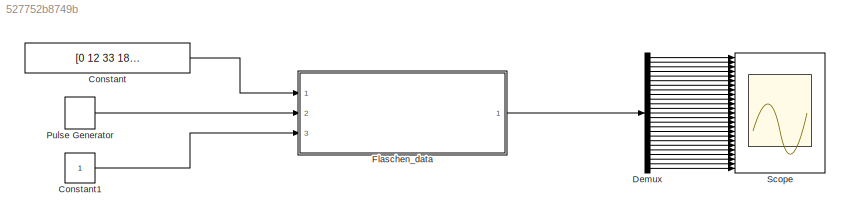
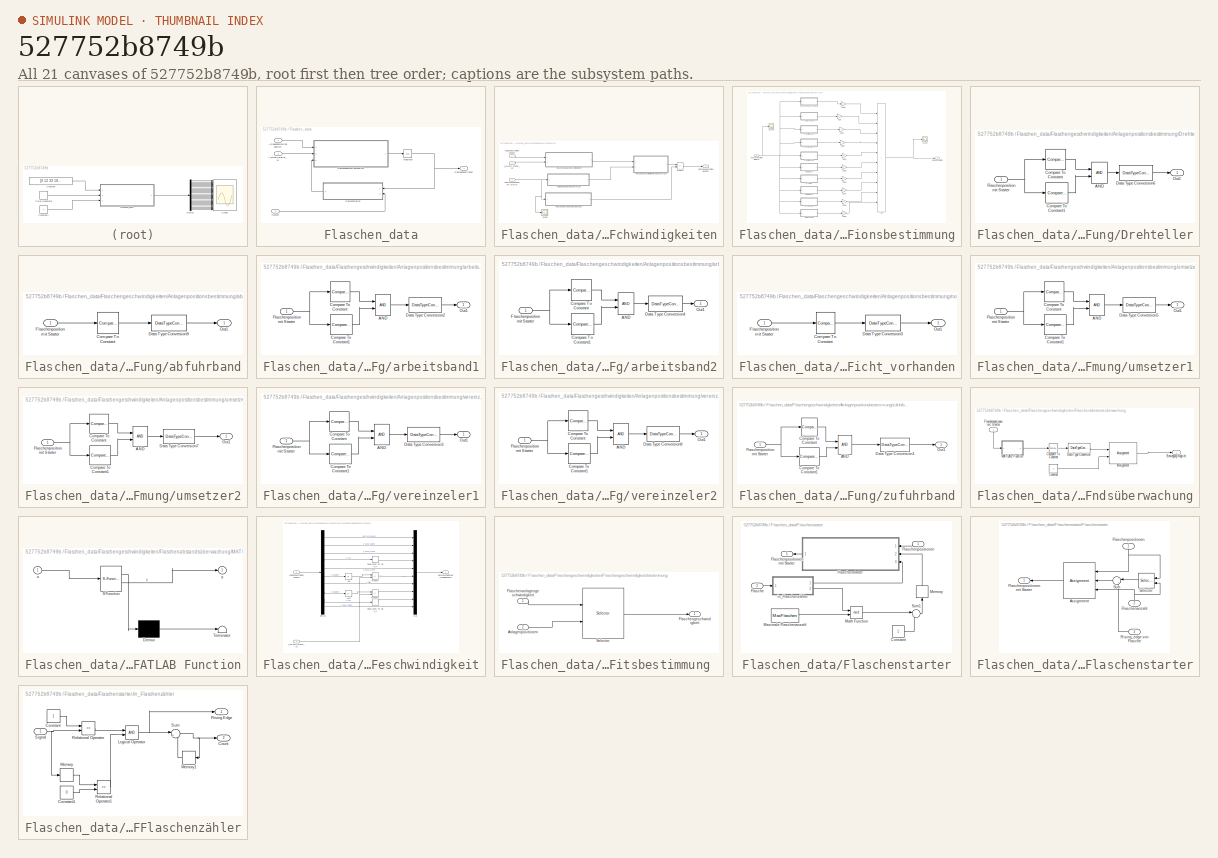
[diagram: thumbnail index - all 21 canvases of the model, root first then tree order]
MODEL mdl_527752b8749b
KIND model
CONFIG AbsTol = auto
CONFIG EnableMultiTasking = on
CONFIG FixedStep = 0.01
CONFIG MaxStep = auto
CONFIG MinStep = auto
CONFIG RelTol = 1e-3
CONFIG SampleTimeConstraint = Unconstrained
CONFIG SolverName = ode3
CONFIG StartTime = 0.0
CONFIG StopTime = 50
BLOCK [Constant] Constant
  Value = [0 12 33 18 28 -80 53 80 24 30]
BLOCK [Constant] Constant1
BLOCK [Demux] Demux
  Outputs = 25
  Ports = [1, 25]
BLOCK [SubSystem] Flaschen_data
  Ports = [3, 1]
  RequestExecContextInheritance = off
BLOCK [Inport] Flaschen_data/Anlagengeschwindigkeiten
BLOCK [Inport] Flaschen_data/Flasche
  Port = 2
BLOCK [SubSystem] Flaschen_data/Flaschengeschwindigkeiten
  Ports = [3, 1]
  RequestExecContextInheritance = off
BLOCK [Inport] Flaschen_data/Flaschengeschwindigkeiten/Anlagengeschwindigkeiten
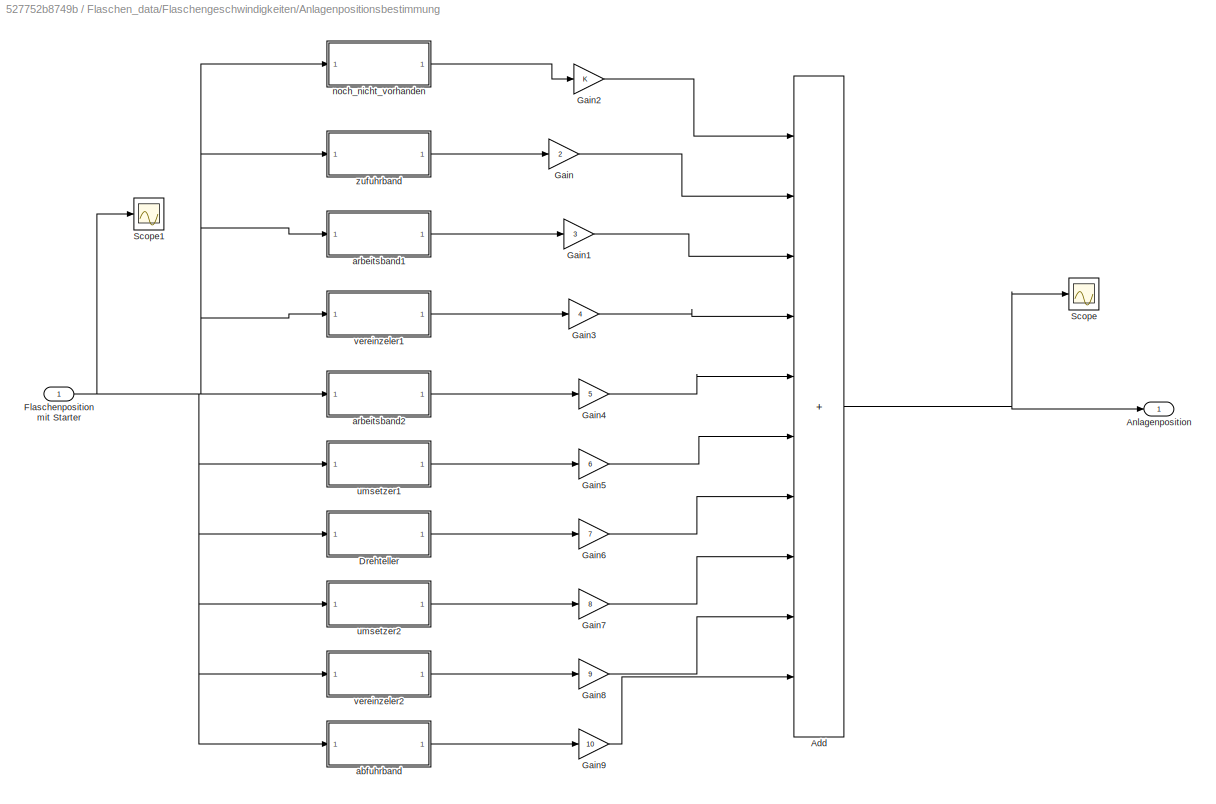
BLOCK [SubSystem] Flaschen_data/Flaschengeschwindigkeiten/Anlagenpositionsbestimmung
  Ports = [1, 1]
  RequestExecContextInheritance = off
BLOCK [Sum] Flaschen_data/Flaschengeschwindigkeiten/Anlagenpositionsbestimmung/Add
  IconShape = rectangular
  Inputs = ++++++++++
  Ports = [10, 1]
BLOCK [Outport] Flaschen_data/Flaschengeschwindigkeiten/Anlagenpositionsbestimmung/Anlagenposition
BLOCK [SubSystem] Flaschen_data/Flaschengeschwindigkeiten/Anlagenpositionsbestimmung/Drehteller
  Ports = [1, 1]
  RequestExecContextInheritance = off
BLOCK [Logic] Flaschen_data/Flaschengeschwindigkeiten/Anlagenpositionsbestimmung/Drehteller/AND
  AllPortsSameDT = off
  IconShape = distinctive
  OutDataTypeStr = boolean
  Ports = [2, 1]
BLOCK [Reference] Flaschen_data/Flaschengeschwindigkeiten/Anlagenpositionsbestimmung/Drehteller/Compare To Constant  REF=simulink/Logic and Bit
Operations/Compare
To Constant
  Ports = [1, 1]
  SourceBlock = simulink/Logic and Bit\nOperations/Compare\nTo Constant
  SourceProductBaseCode = SL
  SourceType = Compare To Constant
BLOCK [Reference] Flaschen_data/Flaschengeschwindigkeiten/Anlagenpositionsbestimmung/Drehteller/Compare To Constant1  REF=simulink/Logic and Bit
Operations/Compare
To Constant
  Ports = [1, 1]
  SourceBlock = simulink/Logic and Bit\nOperations/Compare\nTo Constant
  SourceProductBaseCode = SL
  SourceType = Compare To Constant
BLOCK [DataTypeConversion] Flaschen_data/Flaschengeschwindigkeiten/Anlagenpositionsbestimmung/Drehteller/Data Type Conversion6
  RndMeth = Floor
  SaturateOnIntegerOverflow = off
BLOCK [Inport] Flaschen_data/Flaschengeschwindigkeiten/Anlagenpositionsbestimmung/Drehteller/Flaschenposition mit Starter
BLOCK [Outport] Flaschen_data/Flaschengeschwindigkeiten/Anlagenpositionsbestimmung/Drehteller/Out1
BLOCK [Inport] Flaschen_data/Flaschengeschwindigkeiten/Anlagenpositionsbestimmung/Flaschenposition mit Starter
BLOCK [Gain] Flaschen_data/Flaschengeschwindigkeiten/Anlagenpositionsbestimmung/Gain
  Gain = 2
BLOCK [Gain] Flaschen_data/Flaschengeschwindigkeiten/Anlagenpositionsbestimmung/Gain1
  Gain = 3
BLOCK [Gain] Flaschen_data/Flaschengeschwindigkeiten/Anlagenpositionsbestimmung/Gain2
BLOCK [Gain] Flaschen_data/Flaschengeschwindigkeiten/Anlagenpositionsbestimmung/Gain3
  Gain = 4
BLOCK [Gain] Flaschen_data/Flaschengeschwindigkeiten/Anlagenpositionsbestimmung/Gain4
  Gain = 5
BLOCK [Gain] Flaschen_data/Flaschengeschwindigkeiten/Anlagenpositionsbestimmung/Gain5
  Gain = 6
BLOCK [Gain] Flaschen_data/Flaschengeschwindigkeiten/Anlagenpositionsbestimmung/Gain6
  Gain = 7
BLOCK [Gain] Flaschen_data/Flaschengeschwindigkeiten/Anlagenpositionsbestimmung/Gain7
  Gain = 8
BLOCK [Gain] Flaschen_data/Flaschengeschwindigkeiten/Anlagenpositionsbestimmung/Gain8
  Gain = 9
BLOCK [Gain] Flaschen_data/Flaschengeschwindigkeiten/Anlagenpositionsbestimmung/Gain9
  Gain = 10
BLOCK [Scope] Flaschen_data/Flaschengeschwindigkeiten/Anlagenpositionsbestimmung/Scope
  Floating = off
  NumInputPorts = 1
  Ports = [1]
  ScopeSpecificationString = Simulink.scopes.TimeScopeBlockCfg('CurrentConfiguration', extmgr.ConfigurationSet(extmgr.Configuration('Core','General UI',true),extmgr.Configuration('Core','Source UI',true),extmgr.Configuration('Sources','WiredSimulink',true,'DataLoggingVariableName','ScopeData1'),extmgr.Configuration('Visuals','Time Domain',true,'SerializedDisplays',{struct('MinYLimReal','-0.125','MaxYLimReal','11.125','YLabelR...<+1621ch>
BLOCK [Scope] Flaschen_data/Flaschengeschwindigkeiten/Anlagenpositionsbestimmung/Scope1
  Floating = off
  NumInputPorts = 1
  Ports = [1]
  ScopeSpecificationString = Simulink.scopes.TimeScopeBlockCfg('CurrentConfiguration', extmgr.ConfigurationSet(extmgr.Configuration('Core','General UI',true),extmgr.Configuration('Core','Source UI',true),extmgr.Configuration('Sources','WiredSimulink',true,'DataLoggingVariableName','ScopeData2'),extmgr.Configuration('Visuals','Time Domain',true,'SerializedDisplays',{struct('MinYLimReal','-181.88944','MaxYLimReal','1637.005','Y...<+2208ch>
BLOCK [SubSystem] Flaschen_data/Flaschengeschwindigkeiten/Anlagenpositionsbestimmung/abfuhrband
  Ports = [1, 1]
  RequestExecContextInheritance = off
BLOCK [Reference] Flaschen_data/Flaschengeschwindigkeiten/Anlagenpositionsbestimmung/abfuhrband/Compare To Constant  REF=simulink/Logic and Bit
Operations/Compare
To Constant
  Ports = [1, 1]
  SourceBlock = simulink/Logic and Bit\nOperations/Compare\nTo Constant
  SourceProductBaseCode = SL
  SourceType = Compare To Constant
BLOCK [DataTypeConversion] Flaschen_data/Flaschengeschwindigkeiten/Anlagenpositionsbestimmung/abfuhrband/Data Type Conversion9
  RndMeth = Floor
  SaturateOnIntegerOverflow = off
BLOCK [Inport] Flaschen_data/Flaschengeschwindigkeiten/Anlagenpositionsbestimmung/abfuhrband/Flaschenposition mit Starter
BLOCK [Outport] Flaschen_data/Flaschengeschwindigkeiten/Anlagenpositionsbestimmung/abfuhrband/Out1
BLOCK [SubSystem] Flaschen_data/Flaschengeschwindigkeiten/Anlagenpositionsbestimmung/arbeitsband1
  Ports = [1, 1]
  RequestExecContextInheritance = off
BLOCK [Logic] Flaschen_data/Flaschengeschwindigkeiten/Anlagenpositionsbestimmung/arbeitsband1/AND
  AllPortsSameDT = off
  IconShape = distinctive
  OutDataTypeStr = boolean
  Ports = [2, 1]
BLOCK [Reference] Flaschen_data/Flaschengeschwindigkeiten/Anlagenpositionsbestimmung/arbeitsband1/Compare To Constant  REF=simulink/Logic and Bit
Operations/Compare
To Constant
  Ports = [1, 1]
  SourceBlock = simulink/Logic and Bit\nOperations/Compare\nTo Constant
  SourceProductBaseCode = SL
  SourceType = Compare To Constant
BLOCK [Reference] Flaschen_data/Flaschengeschwindigkeiten/Anlagenpositionsbestimmung/arbeitsband1/Compare To Constant1  REF=simulink/Logic and Bit
Operations/Compare
To Constant
  Ports = [1, 1]
  SourceBlock = simulink/Logic and Bit\nOperations/Compare\nTo Constant
  SourceProductBaseCode = SL
  SourceType = Compare To Constant
BLOCK [DataTypeConversion] Flaschen_data/Flaschengeschwindigkeiten/Anlagenpositionsbestimmung/arbeitsband1/Data Type Conversion2
  RndMeth = Floor
  SaturateOnIntegerOverflow = off
BLOCK [Inport] Flaschen_data/Flaschengeschwindigkeiten/Anlagenpositionsbestimmung/arbeitsband1/Flaschenposition mit Starter
BLOCK [Outport] Flaschen_data/Flaschengeschwindigkeiten/Anlagenpositionsbestimmung/arbeitsband1/Out1
BLOCK [SubSystem] Flaschen_data/Flaschengeschwindigkeiten/Anlagenpositionsbestimmung/arbeitsband2
  Ports = [1, 1]
  RequestExecContextInheritance = off
BLOCK [Logic] Flaschen_data/Flaschengeschwindigkeiten/Anlagenpositionsbestimmung/arbeitsband2/AND
  AllPortsSameDT = off
  IconShape = distinctive
  OutDataTypeStr = boolean
  Ports = [2, 1]
BLOCK [Reference] Flaschen_data/Flaschengeschwindigkeiten/Anlagenpositionsbestimmung/arbeitsband2/Compare To Constant  REF=simulink/Logic and Bit
Operations/Compare
To Constant
  Ports = [1, 1]
  SourceBlock = simulink/Logic and Bit\nOperations/Compare\nTo Constant
  SourceProductBaseCode = SL
  SourceType = Compare To Constant
BLOCK [Reference] Flaschen_data/Flaschengeschwindigkeiten/Anlagenpositionsbestimmung/arbeitsband2/Compare To Constant1  REF=simulink/Logic and Bit
Operations/Compare
To Constant
  Ports = [1, 1]
  SourceBlock = simulink/Logic and Bit\nOperations/Compare\nTo Constant
  SourceProductBaseCode = SL
  SourceType = Compare To Constant
BLOCK [DataTypeConversion] Flaschen_data/Flaschengeschwindigkeiten/Anlagenpositionsbestimmung/arbeitsband2/Data Type Conversion4
  RndMeth = Floor
  SaturateOnIntegerOverflow = off
BLOCK [Inport] Flaschen_data/Flaschengeschwindigkeiten/Anlagenpositionsbestimmung/arbeitsband2/Flaschenposition mit Starter
BLOCK [Outport] Flaschen_data/Flaschengeschwindigkeiten/Anlagenpositionsbestimmung/arbeitsband2/Out1
BLOCK [SubSystem] Flaschen_data/Flaschengeschwindigkeiten/Anlagenpositionsbestimmung/noch_nicht_vorhanden
  Ports = [1, 1]
  RequestExecContextInheritance = off
BLOCK [Reference] Flaschen_data/Flaschengeschwindigkeiten/Anlagenpositionsbestimmung/noch_nicht_vorhanden/Compare To Constant  REF=simulink/Logic and Bit
Operations/Compare
To Constant
  Ports = [1, 1]
  SourceBlock = simulink/Logic and Bit\nOperations/Compare\nTo Constant
  SourceProductBaseCode = SL
  SourceType = Compare To Constant
BLOCK [DataTypeConversion] Flaschen_data/Flaschengeschwindigkeiten/Anlagenpositionsbestimmung/noch_nicht_vorhanden/Data Type Conversion3
  RndMeth = Floor
  SaturateOnIntegerOverflow = off
BLOCK [Inport] Flaschen_data/Flaschengeschwindigkeiten/Anlagenpositionsbestimmung/noch_nicht_vorhanden/Flaschenposition mit Starter
BLOCK [Outport] Flaschen_data/Flaschengeschwindigkeiten/Anlagenpositionsbestimmung/noch_nicht_vorhanden/Out1
BLOCK [SubSystem] Flaschen_data/Flaschengeschwindigkeiten/Anlagenpositionsbestimmung/umsetzer1
  Ports = [1, 1]
  RequestExecContextInheritance = off
BLOCK [Logic] Flaschen_data/Flaschengeschwindigkeiten/Anlagenpositionsbestimmung/umsetzer1/AND
  AllPortsSameDT = off
  IconShape = distinctive
  OutDataTypeStr = boolean
  Ports = [2, 1]
BLOCK [Reference] Flaschen_data/Flaschengeschwindigkeiten/Anlagenpositionsbestimmung/umsetzer1/Compare To Constant  REF=simulink/Logic and Bit
Operations/Compare
To Constant
  Ports = [1, 1]
  SourceBlock = simulink/Logic and Bit\nOperations/Compare\nTo Constant
  SourceProductBaseCode = SL
  SourceType = Compare To Constant
BLOCK [Reference] Flaschen_data/Flaschengeschwindigkeiten/Anlagenpositionsbestimmung/umsetzer1/Compare To Constant1  REF=simulink/Logic and Bit
Operations/Compare
To Constant
  Ports = [1, 1]
  SourceBlock = simulink/Logic and Bit\nOperations/Compare\nTo Constant
  SourceProductBaseCode = SL
  SourceType = Compare To Constant
BLOCK [DataTypeConversion] Flaschen_data/Flaschengeschwindigkeiten/Anlagenpositionsbestimmung/umsetzer1/Data Type Conversion5
  RndMeth = Floor
  SaturateOnIntegerOverflow = off
BLOCK [Inport] Flaschen_data/Flaschengeschwindigkeiten/Anlagenpositionsbestimmung/umsetzer1/Flaschenposition mit Starter
BLOCK [Outport] Flaschen_data/Flaschengeschwindigkeiten/Anlagenpositionsbestimmung/umsetzer1/Out1
BLOCK [SubSystem] Flaschen_data/Flaschengeschwindigkeiten/Anlagenpositionsbestimmung/umsetzer2
  Ports = [1, 1]
  RequestExecContextInheritance = off
BLOCK [Logic] Flaschen_data/Flaschengeschwindigkeiten/Anlagenpositionsbestimmung/umsetzer2/AND
  AllPortsSameDT = off
  IconShape = distinctive
  OutDataTypeStr = boolean
  Ports = [2, 1]
BLOCK [Reference] Flaschen_data/Flaschengeschwindigkeiten/Anlagenpositionsbestimmung/umsetzer2/Compare To Constant  REF=simulink/Logic and Bit
Operations/Compare
To Constant
  Ports = [1, 1]
  SourceBlock = simulink/Logic and Bit\nOperations/Compare\nTo Constant
  SourceProductBaseCode = SL
  SourceType = Compare To Constant
BLOCK [Reference] Flaschen_data/Flaschengeschwindigkeiten/Anlagenpositionsbestimmung/umsetzer2/Compare To Constant1  REF=simulink/Logic and Bit
Operations/Compare
To Constant
  Ports = [1, 1]
  SourceBlock = simulink/Logic and Bit\nOperations/Compare\nTo Constant
  SourceProductBaseCode = SL
  SourceType = Compare To Constant
BLOCK [DataTypeConversion] Flaschen_data/Flaschengeschwindigkeiten/Anlagenpositionsbestimmung/umsetzer2/Data Type Conversion7
  RndMeth = Floor
  SaturateOnIntegerOverflow = off
BLOCK [Inport] Flaschen_data/Flaschengeschwindigkeiten/Anlagenpositionsbestimmung/umsetzer2/Flaschenposition mit Starter
BLOCK [Outport] Flaschen_data/Flaschengeschwindigkeiten/Anlagenpositionsbestimmung/umsetzer2/Out1
BLOCK [SubSystem] Flaschen_data/Flaschengeschwindigkeiten/Anlagenpositionsbestimmung/vereinzeler1
  Ports = [1, 1]
  RequestExecContextInheritance = off
BLOCK [Logic] Flaschen_data/Flaschengeschwindigkeiten/Anlagenpositionsbestimmung/vereinzeler1/AND
  AllPortsSameDT = off
  IconShape = distinctive
  OutDataTypeStr = boolean
  Ports = [2, 1]
BLOCK [Reference] Flaschen_data/Flaschengeschwindigkeiten/Anlagenpositionsbestimmung/vereinzeler1/Compare To Constant  REF=simulink/Logic and Bit
Operations/Compare
To Constant
  Ports = [1, 1]
  SourceBlock = simulink/Logic and Bit\nOperations/Compare\nTo Constant
  SourceProductBaseCode = SL
  SourceType = Compare To Constant
BLOCK [Reference] Flaschen_data/Flaschengeschwindigkeiten/Anlagenpositionsbestimmung/vereinzeler1/Compare To Constant1  REF=simulink/Logic and Bit
Operations/Compare
To Constant
  Ports = [1, 1]
  SourceBlock = simulink/Logic and Bit\nOperations/Compare\nTo Constant
  SourceProductBaseCode = SL
  SourceType = Compare To Constant
BLOCK [DataTypeConversion] Flaschen_data/Flaschengeschwindigkeiten/Anlagenpositionsbestimmung/vereinzeler1/Data Type Conversion3
  RndMeth = Floor
  SaturateOnIntegerOverflow = off
BLOCK [Inport] Flaschen_data/Flaschengeschwindigkeiten/Anlagenpositionsbestimmung/vereinzeler1/Flaschenposition mit Starter
BLOCK [Outport] Flaschen_data/Flaschengeschwindigkeiten/Anlagenpositionsbestimmung/vereinzeler1/Out1
BLOCK [SubSystem] Flaschen_data/Flaschengeschwindigkeiten/Anlagenpositionsbestimmung/vereinzeler2
  Ports = [1, 1]
  RequestExecContextInheritance = off
BLOCK [Logic] Flaschen_data/Flaschengeschwindigkeiten/Anlagenpositionsbestimmung/vereinzeler2/AND
  AllPortsSameDT = off
  IconShape = distinctive
  OutDataTypeStr = boolean
  Ports = [2, 1]
BLOCK [Reference] Flaschen_data/Flaschengeschwindigkeiten/Anlagenpositionsbestimmung/vereinzeler2/Compare To Constant  REF=simulink/Logic and Bit
Operations/Compare
To Constant
  Ports = [1, 1]
  SourceBlock = simulink/Logic and Bit\nOperations/Compare\nTo Constant
  SourceProductBaseCode = SL
  SourceType = Compare To Constant
BLOCK [Reference] Flaschen_data/Flaschengeschwindigkeiten/Anlagenpositionsbestimmung/vereinzeler2/Compare To Constant1  REF=simulink/Logic and Bit
Operations/Compare
To Constant
  Ports = [1, 1]
  SourceBlock = simulink/Logic and Bit\nOperations/Compare\nTo Constant
  SourceProductBaseCode = SL
  SourceType = Compare To Constant
BLOCK [DataTypeConversion] Flaschen_data/Flaschengeschwindigkeiten/Anlagenpositionsbestimmung/vereinzeler2/Data Type Conversion8
  RndMeth = Floor
  SaturateOnIntegerOverflow = off
BLOCK [Inport] Flaschen_data/Flaschengeschwindigkeiten/Anlagenpositionsbestimmung/vereinzeler2/Flaschenposition mit Starter
BLOCK [Outport] Flaschen_data/Flaschengeschwindigkeiten/Anlagenpositionsbestimmung/vereinzeler2/Out1
BLOCK [SubSystem] Flaschen_data/Flaschengeschwindigkeiten/Anlagenpositionsbestimmung/zufuhrband
  Ports = [1, 1]
  RequestExecContextInheritance = off
BLOCK [Logic] Flaschen_data/Flaschengeschwindigkeiten/Anlagenpositionsbestimmung/zufuhrband/AND
  AllPortsSameDT = off
  IconShape = distinctive
  OutDataTypeStr = boolean
  Ports = [2, 1]
BLOCK [Reference] Flaschen_data/Flaschengeschwindigkeiten/Anlagenpositionsbestimmung/zufuhrband/Compare To Constant  REF=simulink/Logic and Bit
Operations/Compare
To Constant
  Ports = [1, 1]
  SourceBlock = simulink/Logic and Bit\nOperations/Compare\nTo Constant
  SourceProductBaseCode = SL
  SourceType = Compare To Constant
BLOCK [Reference] Flaschen_data/Flaschengeschwindigkeiten/Anlagenpositionsbestimmung/zufuhrband/Compare To Constant1  REF=simulink/Logic and Bit
Operations/Compare
To Constant
  Ports = [1, 1]
  SourceBlock = simulink/Logic and Bit\nOperations/Compare\nTo Constant
  SourceProductBaseCode = SL
  SourceType = Compare To Constant
BLOCK [DataTypeConversion] Flaschen_data/Flaschengeschwindigkeiten/Anlagenpositionsbestimmung/zufuhrband/Data Type Conversion1
  RndMeth = Floor
  SaturateOnIntegerOverflow = off
BLOCK [Inport] Flaschen_data/Flaschengeschwindigkeiten/Anlagenpositionsbestimmung/zufuhrband/Flaschenposition mit Starter
BLOCK [Outport] Flaschen_data/Flaschengeschwindigkeiten/Anlagenpositionsbestimmung/zufuhrband/Out1
BLOCK [SubSystem] Flaschen_data/Flaschengeschwindigkeiten/Flaschenabstandsüberwachung
  Ports = [1, 1]
  RequestExecContextInheritance = off
BLOCK [Assignment] Flaschen_data/Flaschengeschwindigkeiten/Flaschenabstandsüberwachung/Assignment
  DiagnosticForDimensions = Warning
  IndexOptions = Index vector (dialog)
  Indices = 1
  OutputSizes = 1
  Ports = [2, 1]
BLOCK [Outport] Flaschen_data/Flaschengeschwindigkeiten/Flaschenabstandsüberwachung/Bewegung möglich
BLOCK [Reference] Flaschen_data/Flaschengeschwindigkeiten/Flaschenabstandsüberwachung/Compare To Constant  REF=simulink/Logic and Bit
Operations/Compare
To Constant
  Ports = [1, 1]
  SourceBlock = simulink/Logic and Bit\nOperations/Compare\nTo Constant
  SourceProductBaseCode = SL
  SourceType = Compare To Constant
BLOCK [Constant] Flaschen_data/Flaschengeschwindigkeiten/Flaschenabstandsüberwachung/Constant
BLOCK [DataTypeConversion] Flaschen_data/Flaschengeschwindigkeiten/Flaschenabstandsüberwachung/Data Type Conversion
  RndMeth = Floor
  SaturateOnIntegerOverflow = off
BLOCK [Inport] Flaschen_data/Flaschengeschwindigkeiten/Flaschenabstandsüberwachung/Flaschenpostionen mit Starter
  NameLocation = right
BLOCK [SubSystem] Flaschen_data/Flaschengeschwindigkeiten/Flaschenabstandsüberwachung/MATLAB Function
  ErrorFcn = Stateflow.Translate.translate
  PermitHierarchicalResolution = ExplicitOnly
  Ports = [1, 1]
  RequestExecContextInheritance = off
  SFBlockType = MATLAB Function
  TreatAsAtomicUnit = on
BLOCK [Demux] Flaschen_data/Flaschengeschwindigkeiten/Flaschenabstandsüberwachung/MATLAB Function/ Demux 
  Outputs = 1
  Ports = [1, 1]
BLOCK [S-Function] Flaschen_data/Flaschengeschwindigkeiten/Flaschenabstandsüberwachung/MATLAB Function/ SFunction 
  EnableBusSupport = on
  FunctionName = sf_sfun
  PortCounts = [1 2]
  Ports = [1, 2]
  SFcnIsStateOwnerBlock = off
  SFunctionDeploymentMode = off
  Tag = Stateflow S-Function 2
BLOCK [Terminator] Flaschen_data/Flaschengeschwindigkeiten/Flaschenabstandsüberwachung/MATLAB Function/ Terminator 
BLOCK [Inport] Flaschen_data/Flaschengeschwindigkeiten/Flaschenabstandsüberwachung/MATLAB Function/u
BLOCK [Outport] Flaschen_data/Flaschengeschwindigkeiten/Flaschenabstandsüberwachung/MATLAB Function/y
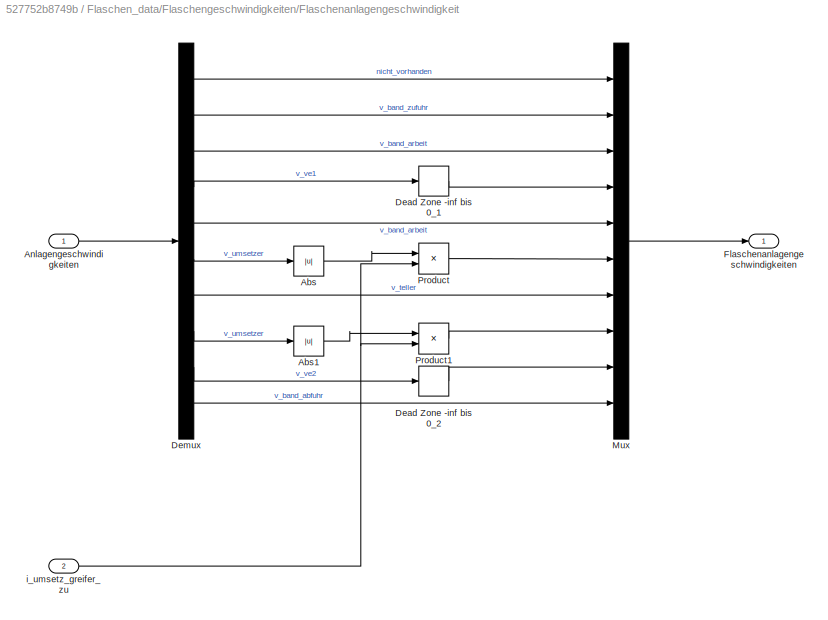
BLOCK [SubSystem] Flaschen_data/Flaschengeschwindigkeiten/Flaschenanlagengeschwindigkeit
  Ports = [2, 1]
  RequestExecContextInheritance = off
BLOCK [Abs] Flaschen_data/Flaschengeschwindigkeiten/Flaschenanlagengeschwindigkeit/Abs
  SaturateOnIntegerOverflow = off
BLOCK [Abs] Flaschen_data/Flaschengeschwindigkeiten/Flaschenanlagengeschwindigkeit/Abs1
  SaturateOnIntegerOverflow = off
BLOCK [Inport] Flaschen_data/Flaschengeschwindigkeiten/Flaschenanlagengeschwindigkeit/Anlagengeschwindigkeiten
BLOCK [DeadZone] Flaschen_data/Flaschengeschwindigkeiten/Flaschenanlagengeschwindigkeit/Dead Zone -inf bis 0_1
  LowerValue = -inf
  UpperValue = 0
BLOCK [DeadZone] Flaschen_data/Flaschengeschwindigkeiten/Flaschenanlagengeschwindigkeit/Dead Zone -inf bis 0_2
  LowerValue = -inf
  UpperValue = 0
BLOCK [Demux] Flaschen_data/Flaschengeschwindigkeiten/Flaschenanlagengeschwindigkeit/Demux
  Outputs = 10
  Ports = [1, 10]
BLOCK [Outport] Flaschen_data/Flaschengeschwindigkeiten/Flaschenanlagengeschwindigkeit/Flaschenanlagengeschwindigkeiten
BLOCK [Mux] Flaschen_data/Flaschengeschwindigkeiten/Flaschenanlagengeschwindigkeit/Mux
  DisplayOption = bar
  Inputs = 10
  Ports = [10, 1]
BLOCK [Product] Flaschen_data/Flaschengeschwindigkeiten/Flaschenanlagengeschwindigkeit/Product
  Ports = [2, 1]
BLOCK [Product] Flaschen_data/Flaschengeschwindigkeiten/Flaschenanlagengeschwindigkeit/Product1
  Ports = [2, 1]
BLOCK [Inport] Flaschen_data/Flaschengeschwindigkeiten/Flaschenanlagengeschwindigkeit/i_umsetz_greifer_zu
  Port = 2
BLOCK [Outport] Flaschen_data/Flaschengeschwindigkeiten/Flaschengeschwindigkeiten
BLOCK [SubSystem] Flaschen_data/Flaschengeschwindigkeiten/Flaschengeschwindigkeitsbestimmung 
  Ports = [2, 1]
  RequestExecContextInheritance = off
  TreatAsAtomicUnit = on
BLOCK [Inport] Flaschen_data/Flaschengeschwindigkeiten/Flaschengeschwindigkeitsbestimmung /Anlagenpositionen
  Port = 2
BLOCK [Inport] Flaschen_data/Flaschengeschwindigkeiten/Flaschengeschwindigkeitsbestimmung /Flaschenanlagengeschwindigkeit
BLOCK [Outport] Flaschen_data/Flaschengeschwindigkeiten/Flaschengeschwindigkeitsbestimmung /Flaschengeschwindigkeit
BLOCK [Selector] Flaschen_data/Flaschengeschwindigkeiten/Flaschengeschwindigkeitsbestimmung /Selector
  IndexOptions = Index vector (port)
  Indices = [1 3]
  InputPortWidth = 10
  OutputSizes = 1
  Ports = [2, 1]
BLOCK [Inport] Flaschen_data/Flaschengeschwindigkeiten/Flaschenpositionen mit Starter
  Port = 3
BLOCK [Product] Flaschen_data/Flaschengeschwindigkeiten/Product
  Ports = [2, 1]
BLOCK [Scope] Flaschen_data/Flaschengeschwindigkeiten/Scope
  Floating = off
  NumInputPorts = 1
  Ports = [1]
  ScopeSpecificationString = Simulink.scopes.TimeScopeBlockCfg('CurrentConfiguration', extmgr.ConfigurationSet(extmgr.Configuration('Core','General UI',true),extmgr.Configuration('Core','Source UI',true),extmgr.Configuration('Sources','WiredSimulink',true,'DataLoggingVariableName','ScopeData3'),extmgr.Configuration('Visuals','Time Domain',true,'SerializedDisplays',{struct('MinYLimReal','-181.88944','MaxYLimReal','1637.005','Y...<+2258ch>
BLOCK [Inport] Flaschen_data/Flaschengeschwindigkeiten/i_umsetz_greifer_zu
  Port = 2
BLOCK [Outport] Flaschen_data/Flaschenpositionen
BLOCK [SubSystem] Flaschen_data/Flaschenstarter
  Ports = [2, 1]
  RequestExecContextInheritance = off
BLOCK [Constant] Flaschen_data/Flaschenstarter/Constant
  OutDataTypeStr = uint16
BLOCK [Inport] Flaschen_data/Flaschenstarter/Flasche
  Port = 2
BLOCK [Inport] Flaschen_data/Flaschenstarter/Flaschenpositionen
BLOCK [Outport] Flaschen_data/Flaschenstarter/Flaschenpositionen mit Starter
BLOCK [SubSystem] Flaschen_data/Flaschenstarter/Flaschenstarter
  Ports = [3, 1]
  RequestExecContextInheritance = off
BLOCK [Assignment] Flaschen_data/Flaschenstarter/Flaschenstarter/Assignment
  IndexOptions = Index vector (port)
  Indices = 1
  OutputSizes = [1]
  Ports = [3, 1]
BLOCK [Inport] Flaschen_data/Flaschenstarter/Flaschenstarter/Flaschenanzahl
  NameLocation = right
  Port = 2
BLOCK [Inport] Flaschen_data/Flaschenstarter/Flaschenstarter/Flaschenpositionen
  NameLocation = right
BLOCK [Outport] Flaschen_data/Flaschenstarter/Flaschenstarter/Flaschenpositionen mit Starter
BLOCK [Inport] Flaschen_data/Flaschenstarter/Flaschenstarter/Rising_edge von Flasche
  Port = 3
BLOCK [Selector] Flaschen_data/Flaschenstarter/Flaschenstarter/Selector
  IndexOptions = Index vector (port)
  Indices = [1 3]
  InputPortWidth = MaxFlaschen
  OutputSizes = 1
  Ports = [2, 1]
BLOCK [Sum] Flaschen_data/Flaschenstarter/Flaschenstarter/Sum
  Inputs = |++
  OutDataTypeStr = double
  Ports = [2, 1]
  RndMeth = Zero
BLOCK [Math] Flaschen_data/Flaschenstarter/Math Function
  Operator = mod
  Ports = [2, 1]
  SignedPower = on
BLOCK [Constant] Flaschen_data/Flaschenstarter/Maximale Flaschenanzahl
  OutDataTypeStr = uint16
  Value = MaxFlaschen
BLOCK [Memory] Flaschen_data/Flaschenstarter/Memory
  InitialCondition = 1
  NameLocation = right
BLOCK [Sum] Flaschen_data/Flaschenstarter/Sum1
  Inputs = |++
  Ports = [2, 1]
  SaturateOnIntegerOverflow = on
BLOCK [SubSystem] Flaschen_data/Flaschenstarter/in_Flaschenzähler
  Ports = [1, 2]
  RequestExecContextInheritance = off
BLOCK [Constant] Flaschen_data/Flaschenstarter/in_Flaschenzähler/Constant
BLOCK [Constant] Flaschen_data/Flaschenstarter/in_Flaschenzähler/Constant1
  Value = 0
BLOCK [Outport] Flaschen_data/Flaschenstarter/in_Flaschenzähler/Count
  Port = 2
BLOCK [Logic] Flaschen_data/Flaschenstarter/in_Flaschenzähler/Logical Operator
  AllPortsSameDT = off
  Ports = [2, 1]
BLOCK [Memory] Flaschen_data/Flaschenstarter/in_Flaschenzähler/Memory
BLOCK [Memory] Flaschen_data/Flaschenstarter/in_Flaschenzähler/Memory1
BLOCK [RelationalOperator] Flaschen_data/Flaschenstarter/in_Flaschenzähler/Relational Operator
  InputSameDT = off
  Operator = ==
  Ports = [2, 1]
BLOCK [RelationalOperator] Flaschen_data/Flaschenstarter/in_Flaschenzähler/Relational Operator1
  InputSameDT = off
  Operator = ==
  Ports = [2, 1]
BLOCK [Outport] Flaschen_data/Flaschenstarter/in_Flaschenzähler/Rising Edge
BLOCK [Inport] Flaschen_data/Flaschenstarter/in_Flaschenzähler/Signal
BLOCK [Sum] Flaschen_data/Flaschenstarter/in_Flaschenzähler/Sum
  Inputs = |++
  OutDataTypeStr = uint16
  Ports = [2, 1]
  SaturateOnIntegerOverflow = on
BLOCK [Integrator] Flaschen_data/Integrator
  Ports = [1, 1]
BLOCK [Inport] Flaschen_data/i_umsetz_greifer_zu
  Port = 3
BLOCK [DiscretePulseGenerator] Pulse Generator
  Ports = [0, 1]
  PulseType = Time based
  PulseWidth = 10
BLOCK [Scope] Scope
  Floating = off
  NumInputPorts = 25
  Ports = [25]
  ScopeSpecificationString = Simulink.scopes.TimeScopeBlockCfg('CurrentConfiguration', extmgr.ConfigurationSet(extmgr.Configuration('Core','General UI',true),extmgr.Configuration('Core','Source UI',true),extmgr.Configuration('Sources','WiredSimulink',true),extmgr.Configuration('Visuals','Time Domain',true,'SerializedDisplays',{struct('MinYLimReal','-181.88944','MaxYLimReal','1637.005','YLabelReal','','MinYLimMag',' 0.00000','...<+11901ch>
LINE Constant1:1 -> Flaschen_data:3
LINE Constant:1 -> Flaschen_data:1
LINE Demux:1 -> Scope:1
LINE Demux:10 -> Scope:10
LINE Demux:11 -> Scope:11
LINE Demux:12 -> Scope:12
LINE Demux:13 -> Scope:13
LINE Demux:14 -> Scope:14
LINE Demux:15 -> Scope:15
LINE Demux:16 -> Scope:16
LINE Demux:17 -> Scope:17
LINE Demux:18 -> Scope:18
LINE Demux:19 -> Scope:19
LINE Demux:2 -> Scope:2
LINE Demux:20 -> Scope:20
LINE Demux:21 -> Scope:21
LINE Demux:22 -> Scope:22
LINE Demux:23 -> Scope:23
LINE Demux:24 -> Scope:24
LINE Demux:25 -> Scope:25
LINE Demux:3 -> Scope:3
LINE Demux:4 -> Scope:4
LINE Demux:5 -> Scope:5
LINE Demux:6 -> Scope:6
LINE Demux:7 -> Scope:7
LINE Demux:8 -> Scope:8
LINE Demux:9 -> Scope:9
LINE Flaschen_data/Anlagengeschwindigkeiten:1 -> Flaschen_data/Flaschengeschwindigkeiten:1
LINE Flaschen_data/Flasche:1 -> Flaschen_data/Flaschenstarter:2
LINE Flaschen_data/Flaschengeschwindigkeiten/Anlagengeschwindigkeiten:1 -> Flaschen_data/Flaschengeschwindigkeiten/Flaschenanlagengeschwindigkeit:1
NET Flaschen_data/Flaschengeschwindigkeiten/Anlagenpositionsbestimmung/Add:1 -> Flaschen_data/Flaschengeschwindigkeiten/Anlagenpositionsbestimmung/Anlagenposition:1, Flaschen_data/Flaschengeschwindigkeiten/Anlagenpositionsbestimmung/Scope:1
LINE Flaschen_data/Flaschengeschwindigkeiten/Anlagenpositionsbestimmung/Drehteller/AND:1 -> Flaschen_data/Flaschengeschwindigkeiten/Anlagenpositionsbestimmung/Drehteller/Data Type Conversion6:1
LINE Flaschen_data/Flaschengeschwindigkeiten/Anlagenpositionsbestimmung/Drehteller/Compare To Constant1:1 -> Flaschen_data/Flaschengeschwindigkeiten/Anlagenpositionsbestimmung/Drehteller/AND:2
LINE Flaschen_data/Flaschengeschwindigkeiten/Anlagenpositionsbestimmung/Drehteller/Compare To Constant:1 -> Flaschen_data/Flaschengeschwindigkeiten/Anlagenpositionsbestimmung/Drehteller/AND:1
LINE Flaschen_data/Flaschengeschwindigkeiten/Anlagenpositionsbestimmung/Drehteller/Data Type Conversion6:1 -> Flaschen_data/Flaschengeschwindigkeiten/Anlagenpositionsbestimmung/Drehteller/Out1:1
NET Flaschen_data/Flaschengeschwindigkeiten/Anlagenpositionsbestimmung/Drehteller/Flaschenposition mit Starter:1 -> Flaschen_data/Flaschengeschwindigkeiten/Anlagenpositionsbestimmung/Drehteller/Compare To Constant1:1, Flaschen_data/Flaschengeschwindigkeiten/Anlagenpositionsbestimmung/Drehteller/Compare To Constant:1
LINE Flaschen_data/Flaschengeschwindigkeiten/Anlagenpositionsbestimmung/Drehteller:1 -> Flaschen_data/Flaschengeschwindigkeiten/Anlagenpositionsbestimmung/Gain6:1
NET Flaschen_data/Flaschengeschwindigkeiten/Anlagenpositionsbestimmung/Flaschenposition mit Starter:1 -> Flaschen_data/Flaschengeschwindigkeiten/Anlagenpositionsbestimmung/Drehteller:1, Flaschen_data/Flaschengeschwindigkeiten/Anlagenpositionsbestimmung/Scope1:1, Flaschen_data/Flaschengeschwindigkeiten/Anlagenpositionsbestimmung/abfuhrband:1, Flaschen_data/Flaschengeschwindigkeiten/Anlagenpositionsbestimmung/arbeitsband1:1, Flaschen_data/Flaschengeschwindigkeiten/Anlagenpositionsbestimmung/arbeitsband2:1, Flaschen_data/Flaschengeschwindigkeiten/Anlagenpositionsbestimmung/noch_nicht_vorhanden:1, Flaschen_data/Flaschengeschwindigkeiten/Anlagenpositionsbestimmung/umsetzer1:1, Flaschen_data/Flaschengeschwindigkeiten/Anlagenpositionsbestimmung/umsetzer2:1, Flaschen_data/Flaschengeschwindigkeiten/Anlagenpositionsbestimmung/vereinzeler1:1, Flaschen_data/Flaschengeschwindigkeiten/Anlagenpositionsbestimmung/vereinzeler2:1, Flaschen_data/Flaschengeschwindigkeiten/Anlagenpositionsbestimmung/zufuhrband:1
LINE Flaschen_data/Flaschengeschwindigkeiten/Anlagenpositionsbestimmung/Gain1:1 -> Flaschen_data/Flaschengeschwindigkeiten/Anlagenpositionsbestimmung/Add:3
LINE Flaschen_data/Flaschengeschwindigkeiten/Anlagenpositionsbestimmung/Gain2:1 -> Flaschen_data/Flaschengeschwindigkeiten/Anlagenpositionsbestimmung/Add:1
LINE Flaschen_data/Flaschengeschwindigkeiten/Anlagenpositionsbestimmung/Gain3:1 -> Flaschen_data/Flaschengeschwindigkeiten/Anlagenpositionsbestimmung/Add:4
LINE Flaschen_data/Flaschengeschwindigkeiten/Anlagenpositionsbestimmung/Gain4:1 -> Flaschen_data/Flaschengeschwindigkeiten/Anlagenpositionsbestimmung/Add:5
LINE Flaschen_data/Flaschengeschwindigkeiten/Anlagenpositionsbestimmung/Gain5:1 -> Flaschen_data/Flaschengeschwindigkeiten/Anlagenpositionsbestimmung/Add:6
LINE Flaschen_data/Flaschengeschwindigkeiten/Anlagenpositionsbestimmung/Gain6:1 -> Flaschen_data/Flaschengeschwindigkeiten/Anlagenpositionsbestimmung/Add:7
LINE Flaschen_data/Flaschengeschwindigkeiten/Anlagenpositionsbestimmung/Gain7:1 -> Flaschen_data/Flaschengeschwindigkeiten/Anlagenpositionsbestimmung/Add:8
LINE Flaschen_data/Flaschengeschwindigkeiten/Anlagenpositionsbestimmung/Gain8:1 -> Flaschen_data/Flaschengeschwindigkeiten/Anlagenpositionsbestimmung/Add:9
LINE Flaschen_data/Flaschengeschwindigkeiten/Anlagenpositionsbestimmung/Gain9:1 -> Flaschen_data/Flaschengeschwindigkeiten/Anlagenpositionsbestimmung/Add:10
LINE Flaschen_data/Flaschengeschwindigkeiten/Anlagenpositionsbestimmung/Gain:1 -> Flaschen_data/Flaschengeschwindigkeiten/Anlagenpositionsbestimmung/Add:2
LINE Flaschen_data/Flaschengeschwindigkeiten/Anlagenpositionsbestimmung/abfuhrband/Compare To Constant:1 -> Flaschen_data/Flaschengeschwindigkeiten/Anlagenpositionsbestimmung/abfuhrband/Data Type Conversion9:1
LINE Flaschen_data/Flaschengeschwindigkeiten/Anlagenpositionsbestimmung/abfuhrband/Data Type Conversion9:1 -> Flaschen_data/Flaschengeschwindigkeiten/Anlagenpositionsbestimmung/abfuhrband/Out1:1
LINE Flaschen_data/Flaschengeschwindigkeiten/Anlagenpositionsbestimmung/abfuhrband/Flaschenposition mit Starter:1 -> Flaschen_data/Flaschengeschwindigkeiten/Anlagenpositionsbestimmung/abfuhrband/Compare To Constant:1
LINE Flaschen_data/Flaschengeschwindigkeiten/Anlagenpositionsbestimmung/abfuhrband:1 -> Flaschen_data/Flaschengeschwindigkeiten/Anlagenpositionsbestimmung/Gain9:1
LINE Flaschen_data/Flaschengeschwindigkeiten/Anlagenpositionsbestimmung/arbeitsband1/AND:1 -> Flaschen_data/Flaschengeschwindigkeiten/Anlagenpositionsbestimmung/arbeitsband1/Data Type Conversion2:1
LINE Flaschen_data/Flaschengeschwindigkeiten/Anlagenpositionsbestimmung/arbeitsband1/Compare To Constant1:1 -> Flaschen_data/Flaschengeschwindigkeiten/Anlagenpositionsbestimmung/arbeitsband1/AND:2
LINE Flaschen_data/Flaschengeschwindigkeiten/Anlagenpositionsbestimmung/arbeitsband1/Compare To Constant:1 -> Flaschen_data/Flaschengeschwindigkeiten/Anlagenpositionsbestimmung/arbeitsband1/AND:1
LINE Flaschen_data/Flaschengeschwindigkeiten/Anlagenpositionsbestimmung/arbeitsband1/Data Type Conversion2:1 -> Flaschen_data/Flaschengeschwindigkeiten/Anlagenpositionsbestimmung/arbeitsband1/Out1:1
NET Flaschen_data/Flaschengeschwindigkeiten/Anlagenpositionsbestimmung/arbeitsband1/Flaschenposition mit Starter:1 -> Flaschen_data/Flaschengeschwindigkeiten/Anlagenpositionsbestimmung/arbeitsband1/Compare To Constant1:1, Flaschen_data/Flaschengeschwindigkeiten/Anlagenpositionsbestimmung/arbeitsband1/Compare To Constant:1
LINE Flaschen_data/Flaschengeschwindigkeiten/Anlagenpositionsbestimmung/arbeitsband1:1 -> Flaschen_data/Flaschengeschwindigkeiten/Anlagenpositionsbestimmung/Gain1:1
LINE Flaschen_data/Flaschengeschwindigkeiten/Anlagenpositionsbestimmung/arbeitsband2/AND:1 -> Flaschen_data/Flaschengeschwindigkeiten/Anlagenpositionsbestimmung/arbeitsband2/Data Type Conversion4:1
LINE Flaschen_data/Flaschengeschwindigkeiten/Anlagenpositionsbestimmung/arbeitsband2/Compare To Constant1:1 -> Flaschen_data/Flaschengeschwindigkeiten/Anlagenpositionsbestimmung/arbeitsband2/AND:2
LINE Flaschen_data/Flaschengeschwindigkeiten/Anlagenpositionsbestimmung/arbeitsband2/Compare To Constant:1 -> Flaschen_data/Flaschengeschwindigkeiten/Anlagenpositionsbestimmung/arbeitsband2/AND:1
LINE Flaschen_data/Flaschengeschwindigkeiten/Anlagenpositionsbestimmung/arbeitsband2/Data Type Conversion4:1 -> Flaschen_data/Flaschengeschwindigkeiten/Anlagenpositionsbestimmung/arbeitsband2/Out1:1
NET Flaschen_data/Flaschengeschwindigkeiten/Anlagenpositionsbestimmung/arbeitsband2/Flaschenposition mit Starter:1 -> Flaschen_data/Flaschengeschwindigkeiten/Anlagenpositionsbestimmung/arbeitsband2/Compare To Constant1:1, Flaschen_data/Flaschengeschwindigkeiten/Anlagenpositionsbestimmung/arbeitsband2/Compare To Constant:1
LINE Flaschen_data/Flaschengeschwindigkeiten/Anlagenpositionsbestimmung/arbeitsband2:1 -> Flaschen_data/Flaschengeschwindigkeiten/Anlagenpositionsbestimmung/Gain4:1
LINE Flaschen_data/Flaschengeschwindigkeiten/Anlagenpositionsbestimmung/noch_nicht_vorhanden/Compare To Constant:1 -> Flaschen_data/Flaschengeschwindigkeiten/Anlagenpositionsbestimmung/noch_nicht_vorhanden/Data Type Conversion3:1
LINE Flaschen_data/Flaschengeschwindigkeiten/Anlagenpositionsbestimmung/noch_nicht_vorhanden/Data Type Conversion3:1 -> Flaschen_data/Flaschengeschwindigkeiten/Anlagenpositionsbestimmung/noch_nicht_vorhanden/Out1:1
LINE Flaschen_data/Flaschengeschwindigkeiten/Anlagenpositionsbestimmung/noch_nicht_vorhanden/Flaschenposition mit Starter:1 -> Flaschen_data/Flaschengeschwindigkeiten/Anlagenpositionsbestimmung/noch_nicht_vorhanden/Compare To Constant:1
LINE Flaschen_data/Flaschengeschwindigkeiten/Anlagenpositionsbestimmung/noch_nicht_vorhanden:1 -> Flaschen_data/Flaschengeschwindigkeiten/Anlagenpositionsbestimmung/Gain2:1
LINE Flaschen_data/Flaschengeschwindigkeiten/Anlagenpositionsbestimmung/umsetzer1/AND:1 -> Flaschen_data/Flaschengeschwindigkeiten/Anlagenpositionsbestimmung/umsetzer1/Data Type Conversion5:1
LINE Flaschen_data/Flaschengeschwindigkeiten/Anlagenpositionsbestimmung/umsetzer1/Compare To Constant1:1 -> Flaschen_data/Flaschengeschwindigkeiten/Anlagenpositionsbestimmung/umsetzer1/AND:2
LINE Flaschen_data/Flaschengeschwindigkeiten/Anlagenpositionsbestimmung/umsetzer1/Compare To Constant:1 -> Flaschen_data/Flaschengeschwindigkeiten/Anlagenpositionsbestimmung/umsetzer1/AND:1
LINE Flaschen_data/Flaschengeschwindigkeiten/Anlagenpositionsbestimmung/umsetzer1/Data Type Conversion5:1 -> Flaschen_data/Flaschengeschwindigkeiten/Anlagenpositionsbestimmung/umsetzer1/Out1:1
NET Flaschen_data/Flaschengeschwindigkeiten/Anlagenpositionsbestimmung/umsetzer1/Flaschenposition mit Starter:1 -> Flaschen_data/Flaschengeschwindigkeiten/Anlagenpositionsbestimmung/umsetzer1/Compare To Constant1:1, Flaschen_data/Flaschengeschwindigkeiten/Anlagenpositionsbestimmung/umsetzer1/Compare To Constant:1
LINE Flaschen_data/Flaschengeschwindigkeiten/Anlagenpositionsbestimmung/umsetzer1:1 -> Flaschen_data/Flaschengeschwindigkeiten/Anlagenpositionsbestimmung/Gain5:1
LINE Flaschen_data/Flaschengeschwindigkeiten/Anlagenpositionsbestimmung/umsetzer2/AND:1 -> Flaschen_data/Flaschengeschwindigkeiten/Anlagenpositionsbestimmung/umsetzer2/Data Type Conversion7:1
LINE Flaschen_data/Flaschengeschwindigkeiten/Anlagenpositionsbestimmung/umsetzer2/Compare To Constant1:1 -> Flaschen_data/Flaschengeschwindigkeiten/Anlagenpositionsbestimmung/umsetzer2/AND:2
LINE Flaschen_data/Flaschengeschwindigkeiten/Anlagenpositionsbestimmung/umsetzer2/Compare To Constant:1 -> Flaschen_data/Flaschengeschwindigkeiten/Anlagenpositionsbestimmung/umsetzer2/AND:1
LINE Flaschen_data/Flaschengeschwindigkeiten/Anlagenpositionsbestimmung/umsetzer2/Data Type Conversion7:1 -> Flaschen_data/Flaschengeschwindigkeiten/Anlagenpositionsbestimmung/umsetzer2/Out1:1
NET Flaschen_data/Flaschengeschwindigkeiten/Anlagenpositionsbestimmung/umsetzer2/Flaschenposition mit Starter:1 -> Flaschen_data/Flaschengeschwindigkeiten/Anlagenpositionsbestimmung/umsetzer2/Compare To Constant1:1, Flaschen_data/Flaschengeschwindigkeiten/Anlagenpositionsbestimmung/umsetzer2/Compare To Constant:1
LINE Flaschen_data/Flaschengeschwindigkeiten/Anlagenpositionsbestimmung/umsetzer2:1 -> Flaschen_data/Flaschengeschwindigkeiten/Anlagenpositionsbestimmung/Gain7:1
LINE Flaschen_data/Flaschengeschwindigkeiten/Anlagenpositionsbestimmung/vereinzeler1/AND:1 -> Flaschen_data/Flaschengeschwindigkeiten/Anlagenpositionsbestimmung/vereinzeler1/Data Type Conversion3:1
LINE Flaschen_data/Flaschengeschwindigkeiten/Anlagenpositionsbestimmung/vereinzeler1/Compare To Constant1:1 -> Flaschen_data/Flaschengeschwindigkeiten/Anlagenpositionsbestimmung/vereinzeler1/AND:2
LINE Flaschen_data/Flaschengeschwindigkeiten/Anlagenpositionsbestimmung/vereinzeler1/Compare To Constant:1 -> Flaschen_data/Flaschengeschwindigkeiten/Anlagenpositionsbestimmung/vereinzeler1/AND:1
LINE Flaschen_data/Flaschengeschwindigkeiten/Anlagenpositionsbestimmung/vereinzeler1/Data Type Conversion3:1 -> Flaschen_data/Flaschengeschwindigkeiten/Anlagenpositionsbestimmung/vereinzeler1/Out1:1
NET Flaschen_data/Flaschengeschwindigkeiten/Anlagenpositionsbestimmung/vereinzeler1/Flaschenposition mit Starter:1 -> Flaschen_data/Flaschengeschwindigkeiten/Anlagenpositionsbestimmung/vereinzeler1/Compare To Constant1:1, Flaschen_data/Flaschengeschwindigkeiten/Anlagenpositionsbestimmung/vereinzeler1/Compare To Constant:1
LINE Flaschen_data/Flaschengeschwindigkeiten/Anlagenpositionsbestimmung/vereinzeler1:1 -> Flaschen_data/Flaschengeschwindigkeiten/Anlagenpositionsbestimmung/Gain3:1
LINE Flaschen_data/Flaschengeschwindigkeiten/Anlagenpositionsbestimmung/vereinzeler2/AND:1 -> Flaschen_data/Flaschengeschwindigkeiten/Anlagenpositionsbestimmung/vereinzeler2/Data Type Conversion8:1
LINE Flaschen_data/Flaschengeschwindigkeiten/Anlagenpositionsbestimmung/vereinzeler2/Compare To Constant1:1 -> Flaschen_data/Flaschengeschwindigkeiten/Anlagenpositionsbestimmung/vereinzeler2/AND:2
LINE Flaschen_data/Flaschengeschwindigkeiten/Anlagenpositionsbestimmung/vereinzeler2/Compare To Constant:1 -> Flaschen_data/Flaschengeschwindigkeiten/Anlagenpositionsbestimmung/vereinzeler2/AND:1
LINE Flaschen_data/Flaschengeschwindigkeiten/Anlagenpositionsbestimmung/vereinzeler2/Data Type Conversion8:1 -> Flaschen_data/Flaschengeschwindigkeiten/Anlagenpositionsbestimmung/vereinzeler2/Out1:1
NET Flaschen_data/Flaschengeschwindigkeiten/Anlagenpositionsbestimmung/vereinzeler2/Flaschenposition mit Starter:1 -> Flaschen_data/Flaschengeschwindigkeiten/Anlagenpositionsbestimmung/vereinzeler2/Compare To Constant1:1, Flaschen_data/Flaschengeschwindigkeiten/Anlagenpositionsbestimmung/vereinzeler2/Compare To Constant:1
LINE Flaschen_data/Flaschengeschwindigkeiten/Anlagenpositionsbestimmung/vereinzeler2:1 -> Flaschen_data/Flaschengeschwindigkeiten/Anlagenpositionsbestimmung/Gain8:1
LINE Flaschen_data/Flaschengeschwindigkeiten/Anlagenpositionsbestimmung/zufuhrband/AND:1 -> Flaschen_data/Flaschengeschwindigkeiten/Anlagenpositionsbestimmung/zufuhrband/Data Type Conversion1:1
LINE Flaschen_data/Flaschengeschwindigkeiten/Anlagenpositionsbestimmung/zufuhrband/Compare To Constant1:1 -> Flaschen_data/Flaschengeschwindigkeiten/Anlagenpositionsbestimmung/zufuhrband/AND:2
LINE Flaschen_data/Flaschengeschwindigkeiten/Anlagenpositionsbestimmung/zufuhrband/Compare To Constant:1 -> Flaschen_data/Flaschengeschwindigkeiten/Anlagenpositionsbestimmung/zufuhrband/AND:1
LINE Flaschen_data/Flaschengeschwindigkeiten/Anlagenpositionsbestimmung/zufuhrband/Data Type Conversion1:1 -> Flaschen_data/Flaschengeschwindigkeiten/Anlagenpositionsbestimmung/zufuhrband/Out1:1
NET Flaschen_data/Flaschengeschwindigkeiten/Anlagenpositionsbestimmung/zufuhrband/Flaschenposition mit Starter:1 -> Flaschen_data/Flaschengeschwindigkeiten/Anlagenpositionsbestimmung/zufuhrband/Compare To Constant1:1, Flaschen_data/Flaschengeschwindigkeiten/Anlagenpositionsbestimmung/zufuhrband/Compare To Constant:1
LINE Flaschen_data/Flaschengeschwindigkeiten/Anlagenpositionsbestimmung/zufuhrband:1 -> Flaschen_data/Flaschengeschwindigkeiten/Anlagenpositionsbestimmung/Gain:1
LINE Flaschen_data/Flaschengeschwindigkeiten/Anlagenpositionsbestimmung:1 -> Flaschen_data/Flaschengeschwindigkeiten/Flaschengeschwindigkeitsbestimmung :2
LINE Flaschen_data/Flaschengeschwindigkeiten/Flaschenabstandsüberwachung/Assignment:1 -> Flaschen_data/Flaschengeschwindigkeiten/Flaschenabstandsüberwachung/Bewegung möglich:1
LINE Flaschen_data/Flaschengeschwindigkeiten/Flaschenabstandsüberwachung/Compare To Constant:1 -> Flaschen_data/Flaschengeschwindigkeiten/Flaschenabstandsüberwachung/Data Type Conversion:1
LINE Flaschen_data/Flaschengeschwindigkeiten/Flaschenabstandsüberwachung/Constant:1 -> Flaschen_data/Flaschengeschwindigkeiten/Flaschenabstandsüberwachung/Assignment:2
LINE Flaschen_data/Flaschengeschwindigkeiten/Flaschenabstandsüberwachung/Data Type Conversion:1 -> Flaschen_data/Flaschengeschwindigkeiten/Flaschenabstandsüberwachung/Assignment:1
LINE Flaschen_data/Flaschengeschwindigkeiten/Flaschenabstandsüberwachung/Flaschenpostionen mit Starter:1 -> Flaschen_data/Flaschengeschwindigkeiten/Flaschenabstandsüberwachung/MATLAB Function:1
LINE Flaschen_data/Flaschengeschwindigkeiten/Flaschenabstandsüberwachung/MATLAB Function:1 -> Flaschen_data/Flaschengeschwindigkeiten/Flaschenabstandsüberwachung/Compare To Constant:1
LINE Flaschen_data/Flaschengeschwindigkeiten/Flaschenabstandsüberwachung:1 -> Flaschen_data/Flaschengeschwindigkeiten/Product:2
LINE Flaschen_data/Flaschengeschwindigkeiten/Flaschenanlagengeschwindigkeit/Abs1:1 -> Flaschen_data/Flaschengeschwindigkeiten/Flaschenanlagengeschwindigkeit/Product1:1
LINE Flaschen_data/Flaschengeschwindigkeiten/Flaschenanlagengeschwindigkeit/Abs:1 -> Flaschen_data/Flaschengeschwindigkeiten/Flaschenanlagengeschwindigkeit/Product:1
LINE Flaschen_data/Flaschengeschwindigkeiten/Flaschenanlagengeschwindigkeit/Anlagengeschwindigkeiten:1 -> Flaschen_data/Flaschengeschwindigkeiten/Flaschenanlagengeschwindigkeit/Demux:1
LINE Flaschen_data/Flaschengeschwindigkeiten/Flaschenanlagengeschwindigkeit/Dead Zone -inf bis 0_1:1 -> Flaschen_data/Flaschengeschwindigkeiten/Flaschenanlagengeschwindigkeit/Mux:4
LINE Flaschen_data/Flaschengeschwindigkeiten/Flaschenanlagengeschwindigkeit/Dead Zone -inf bis 0_2:1 -> Flaschen_data/Flaschengeschwindigkeiten/Flaschenanlagengeschwindigkeit/Mux:9
LINE Flaschen_data/Flaschengeschwindigkeiten/Flaschenanlagengeschwindigkeit/Demux:1 -> Flaschen_data/Flaschengeschwindigkeiten/Flaschenanlagengeschwindigkeit/Mux:1
LINE Flaschen_data/Flaschengeschwindigkeiten/Flaschenanlagengeschwindigkeit/Demux:10 -> Flaschen_data/Flaschengeschwindigkeiten/Flaschenanlagengeschwindigkeit/Mux:10
LINE Flaschen_data/Flaschengeschwindigkeiten/Flaschenanlagengeschwindigkeit/Demux:2 -> Flaschen_data/Flaschengeschwindigkeiten/Flaschenanlagengeschwindigkeit/Mux:2
LINE Flaschen_data/Flaschengeschwindigkeiten/Flaschenanlagengeschwindigkeit/Demux:3 -> Flaschen_data/Flaschengeschwindigkeiten/Flaschenanlagengeschwindigkeit/Mux:3
LINE Flaschen_data/Flaschengeschwindigkeiten/Flaschenanlagengeschwindigkeit/Demux:4 -> Flaschen_data/Flaschengeschwindigkeiten/Flaschenanlagengeschwindigkeit/Dead Zone -inf bis 0_1:1
LINE Flaschen_data/Flaschengeschwindigkeiten/Flaschenanlagengeschwindigkeit/Demux:5 -> Flaschen_data/Flaschengeschwindigkeiten/Flaschenanlagengeschwindigkeit/Mux:5
LINE Flaschen_data/Flaschengeschwindigkeiten/Flaschenanlagengeschwindigkeit/Demux:6 -> Flaschen_data/Flaschengeschwindigkeiten/Flaschenanlagengeschwindigkeit/Abs:1
LINE Flaschen_data/Flaschengeschwindigkeiten/Flaschenanlagengeschwindigkeit/Demux:7 -> Flaschen_data/Flaschengeschwindigkeiten/Flaschenanlagengeschwindigkeit/Mux:7
LINE Flaschen_data/Flaschengeschwindigkeiten/Flaschenanlagengeschwindigkeit/Demux:8 -> Flaschen_data/Flaschengeschwindigkeiten/Flaschenanlagengeschwindigkeit/Abs1:1
LINE Flaschen_data/Flaschengeschwindigkeiten/Flaschenanlagengeschwindigkeit/Demux:9 -> Flaschen_data/Flaschengeschwindigkeiten/Flaschenanlagengeschwindigkeit/Dead Zone -inf bis 0_2:1
LINE Flaschen_data/Flaschengeschwindigkeiten/Flaschenanlagengeschwindigkeit/Mux:1 -> Flaschen_data/Flaschengeschwindigkeiten/Flaschenanlagengeschwindigkeit/Flaschenanlagengeschwindigkeiten:1
LINE Flaschen_data/Flaschengeschwindigkeiten/Flaschenanlagengeschwindigkeit/Product1:1 -> Flaschen_data/Flaschengeschwindigkeiten/Flaschenanlagengeschwindigkeit/Mux:8
LINE Flaschen_data/Flaschengeschwindigkeiten/Flaschenanlagengeschwindigkeit/Product:1 -> Flaschen_data/Flaschengeschwindigkeiten/Flaschenanlagengeschwindigkeit/Mux:6
NET Flaschen_data/Flaschengeschwindigkeiten/Flaschenanlagengeschwindigkeit/i_umsetz_greifer_zu:1 -> Flaschen_data/Flaschengeschwindigkeiten/Flaschenanlagengeschwindigkeit/Product1:2, Flaschen_data/Flaschengeschwindigkeiten/Flaschenanlagengeschwindigkeit/Product:2
LINE Flaschen_data/Flaschengeschwindigkeiten/Flaschenanlagengeschwindigkeit:1 -> Flaschen_data/Flaschengeschwindigkeiten/Flaschengeschwindigkeitsbestimmung :1
LINE Flaschen_data/Flaschengeschwindigkeiten/Flaschengeschwindigkeitsbestimmung /Anlagenpositionen:1 -> Flaschen_data/Flaschengeschwindigkeiten/Flaschengeschwindigkeitsbestimmung /Selector:2
LINE Flaschen_data/Flaschengeschwindigkeiten/Flaschengeschwindigkeitsbestimmung /Flaschenanlagengeschwindigkeit:1 -> Flaschen_data/Flaschengeschwindigkeiten/Flaschengeschwindigkeitsbestimmung /Selector:1
LINE Flaschen_data/Flaschengeschwindigkeiten/Flaschengeschwindigkeitsbestimmung /Selector:1 -> Flaschen_data/Flaschengeschwindigkeiten/Flaschengeschwindigkeitsbestimmung /Flaschengeschwindigkeit:1
LINE Flaschen_data/Flaschengeschwindigkeiten/Flaschengeschwindigkeitsbestimmung :1 -> Flaschen_data/Flaschengeschwindigkeiten/Product:1
NET Flaschen_data/Flaschengeschwindigkeiten/Flaschenpositionen mit Starter:1 -> Flaschen_data/Flaschengeschwindigkeiten/Anlagenpositionsbestimmung:1, Flaschen_data/Flaschengeschwindigkeiten/Flaschenabstandsüberwachung:1, Flaschen_data/Flaschengeschwindigkeiten/Scope:1
LINE Flaschen_data/Flaschengeschwindigkeiten/Product:1 -> Flaschen_data/Flaschengeschwindigkeiten/Flaschengeschwindigkeiten:1
LINE Flaschen_data/Flaschengeschwindigkeiten/i_umsetz_greifer_zu:1 -> Flaschen_data/Flaschengeschwindigkeiten/Flaschenanlagengeschwindigkeit:2
LINE Flaschen_data/Flaschengeschwindigkeiten:1 -> Flaschen_data/Integrator:1
LINE Flaschen_data/Flaschenstarter/Constant:1 -> Flaschen_data/Flaschenstarter/Sum1:2
LINE Flaschen_data/Flaschenstarter/Flasche:1 -> Flaschen_data/Flaschenstarter/in_Flaschenzähler:1
LINE Flaschen_data/Flaschenstarter/Flaschenpositionen:1 -> Flaschen_data/Flaschenstarter/Flaschenstarter:1
LINE Flaschen_data/Flaschenstarter/Flaschenstarter/Assignment:1 -> Flaschen_data/Flaschenstarter/Flaschenstarter/Flaschenpositionen mit Starter:1
NET Flaschen_data/Flaschenstarter/Flaschenstarter/Flaschenanzahl:1 -> Flaschen_data/Flaschenstarter/Flaschenstarter/Assignment:3, Flaschen_data/Flaschenstarter/Flaschenstarter/Selector:2
NET Flaschen_data/Flaschenstarter/Flaschenstarter/Flaschenpositionen:1 -> Flaschen_data/Flaschenstarter/Flaschenstarter/Assignment:1, Flaschen_data/Flaschenstarter/Flaschenstarter/Selector:1
LINE Flaschen_data/Flaschenstarter/Flaschenstarter/Rising_edge von Flasche:1 -> Flaschen_data/Flaschenstarter/Flaschenstarter/Sum:2
LINE Flaschen_data/Flaschenstarter/Flaschenstarter/Selector:1 -> Flaschen_data/Flaschenstarter/Flaschenstarter/Sum:1
LINE Flaschen_data/Flaschenstarter/Flaschenstarter/Sum:1 -> Flaschen_data/Flaschenstarter/Flaschenstarter/Assignment:2
LINE Flaschen_data/Flaschenstarter/Flaschenstarter:1 -> Flaschen_data/Flaschenstarter/Flaschenpositionen mit Starter:1
LINE Flaschen_data/Flaschenstarter/Math Function:1 -> Flaschen_data/Flaschenstarter/Sum1:1
LINE Flaschen_data/Flaschenstarter/Maximale Flaschenanzahl:1 -> Flaschen_data/Flaschenstarter/Math Function:2
LINE Flaschen_data/Flaschenstarter/Memory:1 -> Flaschen_data/Flaschenstarter/Flaschenstarter:2
LINE Flaschen_data/Flaschenstarter/Sum1:1 -> Flaschen_data/Flaschenstarter/Memory:1
LINE Flaschen_data/Flaschenstarter/in_Flaschenzähler/Constant1:1 -> Flaschen_data/Flaschenstarter/in_Flaschenzähler/Relational Operator1:2
LINE Flaschen_data/Flaschenstarter/in_Flaschenzähler/Constant:1 -> Flaschen_data/Flaschenstarter/in_Flaschenzähler/Relational Operator:1
NET Flaschen_data/Flaschenstarter/in_Flaschenzähler/Logical Operator:1 -> Flaschen_data/Flaschenstarter/in_Flaschenzähler/Rising Edge:1, Flaschen_data/Flaschenstarter/in_Flaschenzähler/Sum:1
LINE Flaschen_data/Flaschenstarter/in_Flaschenzähler/Memory1:1 -> Flaschen_data/Flaschenstarter/in_Flaschenzähler/Sum:2
LINE Flaschen_data/Flaschenstarter/in_Flaschenzähler/Memory:1 -> Flaschen_data/Flaschenstarter/in_Flaschenzähler/Relational Operator1:1
LINE Flaschen_data/Flaschenstarter/in_Flaschenzähler/Relational Operator1:1 -> Flaschen_data/Flaschenstarter/in_Flaschenzähler/Logical Operator:2
LINE Flaschen_data/Flaschenstarter/in_Flaschenzähler/Relational Operator:1 -> Flaschen_data/Flaschenstarter/in_Flaschenzähler/Logical Operator:1
NET Flaschen_data/Flaschenstarter/in_Flaschenzähler/Signal:1 -> Flaschen_data/Flaschenstarter/in_Flaschenzähler/Memory:1, Flaschen_data/Flaschenstarter/in_Flaschenzähler/Relational Operator:2
NET Flaschen_data/Flaschenstarter/in_Flaschenzähler/Sum:1 -> Flaschen_data/Flaschenstarter/in_Flaschenzähler/Count:1, Flaschen_data/Flaschenstarter/in_Flaschenzähler/Memory1:1
LINE Flaschen_data/Flaschenstarter/in_Flaschenzähler:1 -> Flaschen_data/Flaschenstarter/Flaschenstarter:3
LINE Flaschen_data/Flaschenstarter/in_Flaschenzähler:2 -> Flaschen_data/Flaschenstarter/Math Function:1
LINE Flaschen_data/Flaschenstarter:1 -> Flaschen_data/Flaschengeschwindigkeiten:3
NET Flaschen_data/Integrator:1 -> Flaschen_data/Flaschenpositionen:1, Flaschen_data/Flaschenstarter:1
LINE Flaschen_data/i_umsetz_greifer_zu:1 -> Flaschen_data/Flaschengeschwindigkeiten:2
LINE Flaschen_data:1 -> Demux:1
LINE Pulse Generator:1 -> Flaschen_data:2
note: NET lines group one-source signal fan-out (src -> all destinations, sorted); 1:1 wires keep LINE
CHART Flaschen_data/Flaschengeschwindigkeiten/Flaschenabstandsüberwachung/MATLAB Function states=1 transitions=1
  STATE_LABEL 'eML_blk_kernel()'
  STATE_LABEL 'SCRIPT:\nfunction y = fcn(u)\n\ny = circshift(u,1)-u;\n'
CHART  states=0 transitions=0
